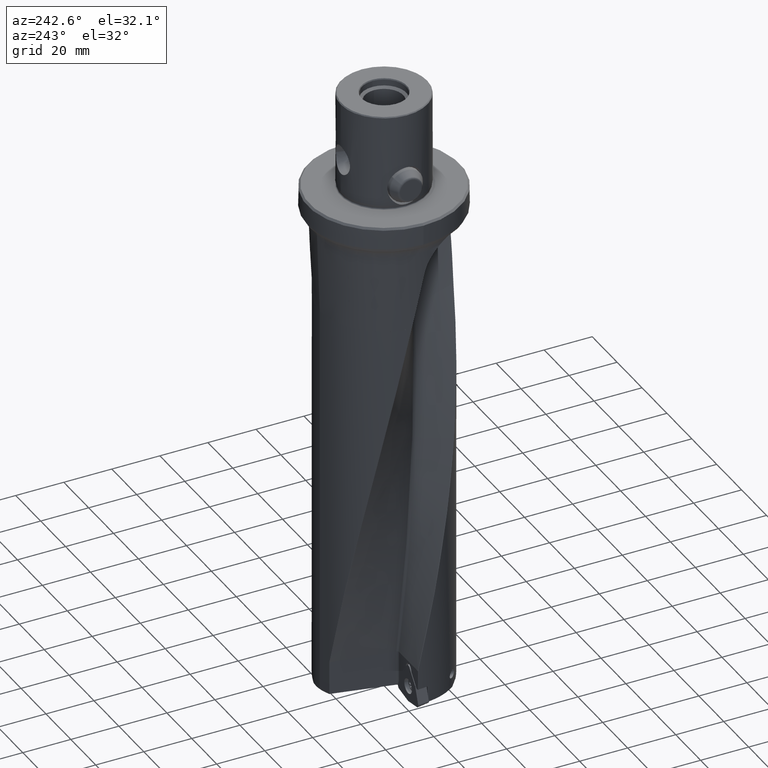
[diagram: clean part render]
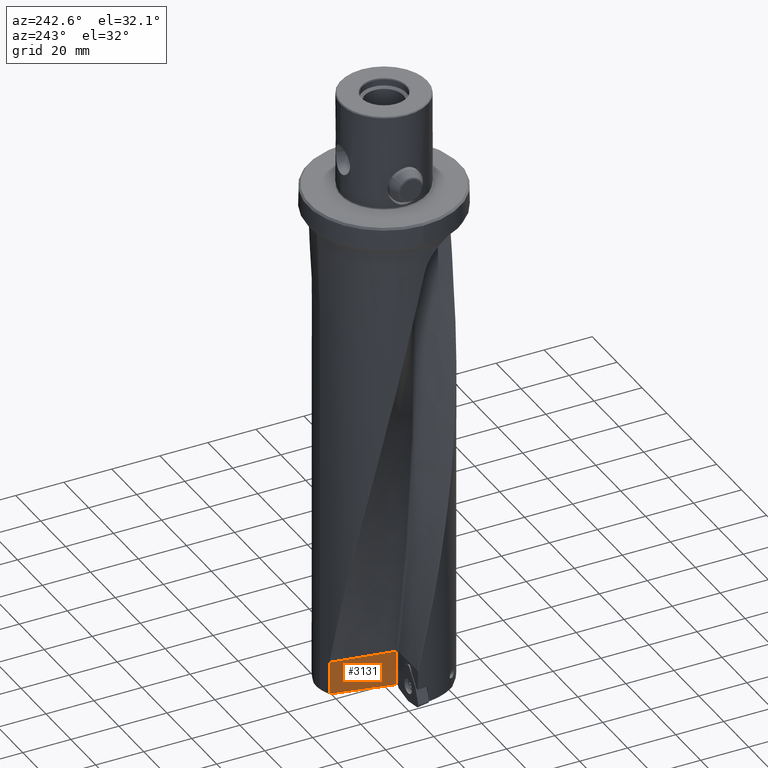
[diagram: same view with one face highlighted and labeled with its STEP entity id]
A machine part, auxiliary view. The second image highlights one B-rep face of the part: STEP entity #3131.
In plain terms, the highlighted planar face has unit normal (0.9848, -0.1736, -0).
Its self-contained STEP definition (entity closure, byte-faithful):
#2051=VERTEX_POINT('NONE',#5742);
#2807=VERTEX_POINT('NONE',#6584);
#3075=EDGE_CURVE('NONE',#3155,#2807,#6879,.T.);
#3131=ADVANCED_FACE('NONE',(#6940),#6941,.F.);
#3155=VERTEX_POINT('NONE',#6966);
#3667=VERTEX_POINT('NONE',#7539);
#3775=EDGE_CURVE('NONE',#2807,#4127,#7662,.T.);
#3899=VERTEX_POINT('NONE',#7803);
#4041=EDGE_CURVE('NONE',#2051,#5487,#7962,.T.);
#4117=EDGE_CURVE('NONE',#4127,#3667,#8047,.T.);
#4127=VERTEX_POINT('NONE',#8058);
#4581=EDGE_CURVE('NONE',#5487,#3899,#8560,.T.);
#5399=EDGE_CURVE('NONE',#3899,#3155,#9454,.T.);
#5449=EDGE_CURVE('NONE',#2051,#3667,#9505,.T.);
#5487=VERTEX_POINT('NONE',#9547);
#5742=CARTESIAN_POINT('',(-6.28861148475418,25.9248189986479,-198.0));
#6584=CARTESIAN_POINT('',(-10.7599934373481,0.566351822333026,-212.488387266189));
#6879=LINE('',#22422,#22423);
#6940=FACE_OUTER_BOUND('',#22598,.T.);
#6941=PLANE('',#22599);
#6966=CARTESIAN_POINT('',(-6.39919266030103,25.2976819881743,-211.719460431701));
#7539=CARTESIAN_POINT('',(-10.7590841537887,0.571508625654096,-198.0));
#7662=LINE('',#36072,#36073);
#7803=CARTESIAN_POINT('',(-6.2884604770109,25.9256754061169,-211.738985503247));
#7962=B_SPLINE_CURVE_WITH_KNOTS('',3,(#41212,#41213,#41214,#41215),.UNSPECIFIED.,.F.,.F.,(4,4),(0.0,0.00741067164480055),.UNSPECIFIED.);
#8047=B_SPLINE_CURVE_WITH_KNOTS('',3,(#44018,#44019,#44020,#44021),.UNSPECIFIED.,.F.,.F.,(4,4),(0.996206360094349,1.0),.UNSPECIFIED.);
#8058=CARTESIAN_POINT('',(-10.7599934373484,0.566351822333073,-197.999076504524));
#8560=LINE('',#51784,#51785);
#9454=LINE('',#75147,#75148);
#9505=B_SPLINE_CURVE_WITH_KNOTS('',1,(#75226,#75227),.UNSPECIFIED.,.F.,.F.,(2,2),(0.240331821601608,0.975954594934621),.UNSPECIFIED.);
#9547=CARTESIAN_POINT('',(-6.2884604770109,25.9256754061169,-197.999981096807));
#22422=CARTESIAN_POINT('',(-16.1433558851646,-29.9642137563804,-213.437619312671));
#22423=VECTOR('',#76983,1.0);
#22598=EDGE_LOOP('',(#77048,#77049,#77050,#77051,#77052,#77053,#77054));
#22599=AXIS2_PLACEMENT_3D('',#77055,#77056,#77057);
#36072=CARTESIAN_POINT('',(-10.7599934373484,0.566351822333073,-214.999958985474));
#36073=VECTOR('',#77939,1.0);
#41212=CARTESIAN_POINT('',(-6.28861148475418,25.9248189986479,-198.0));
#41213=CARTESIAN_POINT('',(-6.28856081915246,25.9251063375538,-198.000005506525));
#41214=CARTESIAN_POINT('',(-6.28851049093616,25.9253917630519,-197.999998902011));
#41215=CARTESIAN_POINT('',(-6.2884604770109,25.9256754061169,-197.999981096807));
#44018=CARTESIAN_POINT('',(-10.7599934373484,0.566351822333074,-197.999076504524));
#44019=CARTESIAN_POINT('',(-10.7596909044742,0.568067571522486,-197.999401949384));
#44020=CARTESIAN_POINT('',(-10.7593878378806,0.569786347584799,-197.999710742405));
#44021=CARTESIAN_POINT('',(-10.7590841537887,0.571508625654096,-198.0));
#51784=CARTESIAN_POINT('',(-6.2884604770109,25.9256754061169,19.1374973745012));
#51785=VECTOR('',#78982,1.0);
#75147=CARTESIAN_POINT('',(-15.7365841940989,-27.6572968601043,-210.073026374853));
#75148=VECTOR('',#79946,1.0);
#75226=CARTESIAN_POINT('',(-6.28861148475418,25.9248189986479,-198.0));
#75227=CARTESIAN_POINT('',(-10.7590841537887,0.571508625654095,-198.0));
#76983=DIRECTION('',(-0.17356683601285,-0.984346441568213,-0.0306045161452654));
#77048=ORIENTED_EDGE('',*,*,#4041,.T.);
#77049=ORIENTED_EDGE('',*,*,#4581,.T.);
#77050=ORIENTED_EDGE('',*,*,#5399,.T.);
#77051=ORIENTED_EDGE('',*,*,#3075,.T.);
#77052=ORIENTED_EDGE('',*,*,#3775,.T.);
#77053=ORIENTED_EDGE('',*,*,#4117,.T.);
#77054=ORIENTED_EDGE('',*,*,#5449,.F.);
#77055=CARTESIAN_POINT('',(-10.9057015591833,-0.259999999999999,-214.999958985474));
#77056=DIRECTION('',(0.984807753012209,-0.173648177666927,-0.0));
#77057=DIRECTION('',(-0.173648177666927,-0.984807753012209,0.0));
#77939=DIRECTION('',(0.0,0.0,1.0));
#78982=DIRECTION('',(0.0,0.0,-1.0));
#79946=DIRECTION('',(-0.17356683601285,-0.984346441568213,0.0306045161452661));